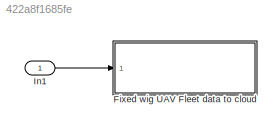
MODEL slx_422a8f1685fe
KIND model
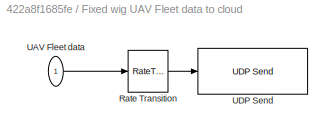
BLOCK [SubSystem] Fixed wig UAV Fleet data to cloud
  FunctionWithSeparateData = off
  MaskHideContents = off
  MinAlgLoopOccurrences = off
  Opaque = off
  Ports = [1]
  PropExecContextOutsideSubsystem = off
  RTWSystemCode = Auto
  RequestExecContextInheritance = off
BLOCK [RateTransition] Fixed wig UAV Fleet data to cloud/Rate Transition
  OutPortSampleTime = simPars.SampleTime*5
BLOCK [Inport] Fixed wig UAV Fleet data to cloud/UAV Fleet data
  IconDisplay = Port number
BLOCK [Reference] Fixed wig UAV Fleet data to cloud/UDP Send  REF=instrumentlib/UDP Send
  ByteOrder = BigEndian
  EnableBlockingMode = on
  Host = localhost
  LocalPort = 9091
  Port = 9090
  Ports = [1]
  SourceBlock = instrumentlib/UDP Send
  SourceType = UDP Send
BLOCK [Inport] In1
  IconDisplay = Port number
LINE Fixed wig UAV Fleet data to cloud/Rate Transition:1 -> Fixed wig UAV Fleet data to cloud/UDP Send:1
LINE Fixed wig UAV Fleet data to cloud/UAV Fleet data:1 -> Fixed wig UAV Fleet data to cloud/Rate Transition:1
LINE In1:1 -> Fixed wig UAV Fleet data to cloud:1
